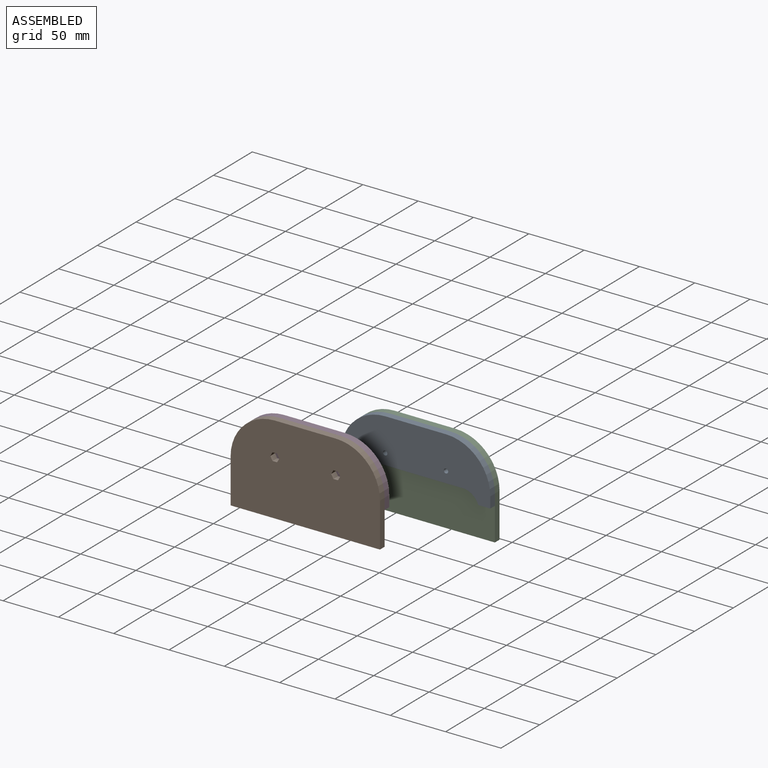
[diagram: assembled view]
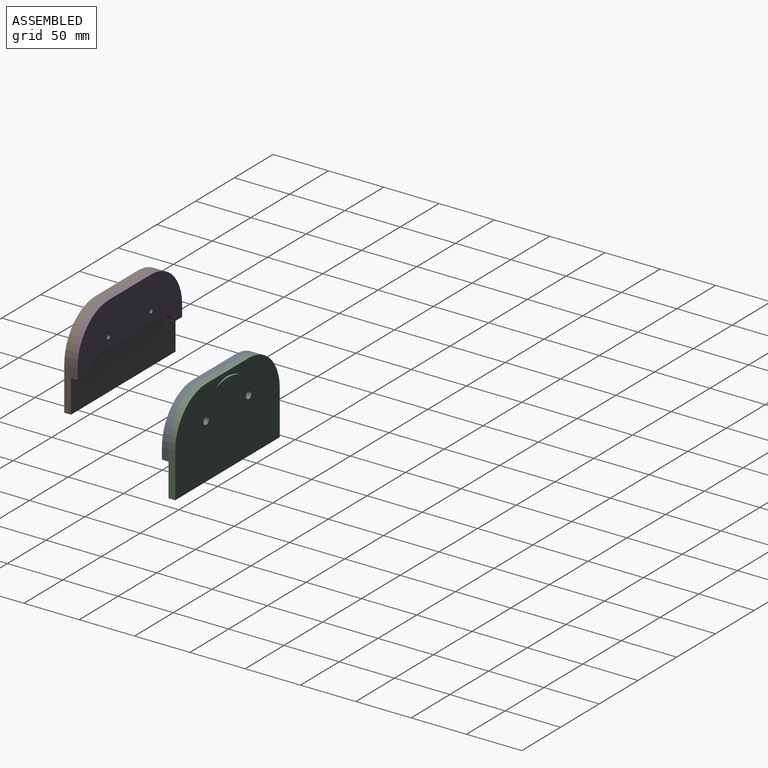
[diagram: assembled view, second angle]
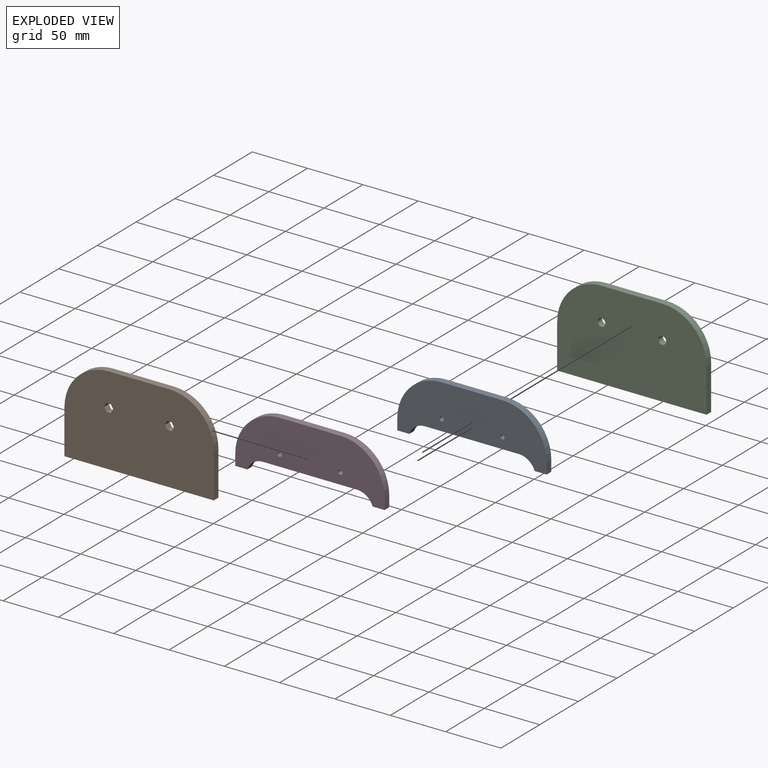
[diagram: exploded view]
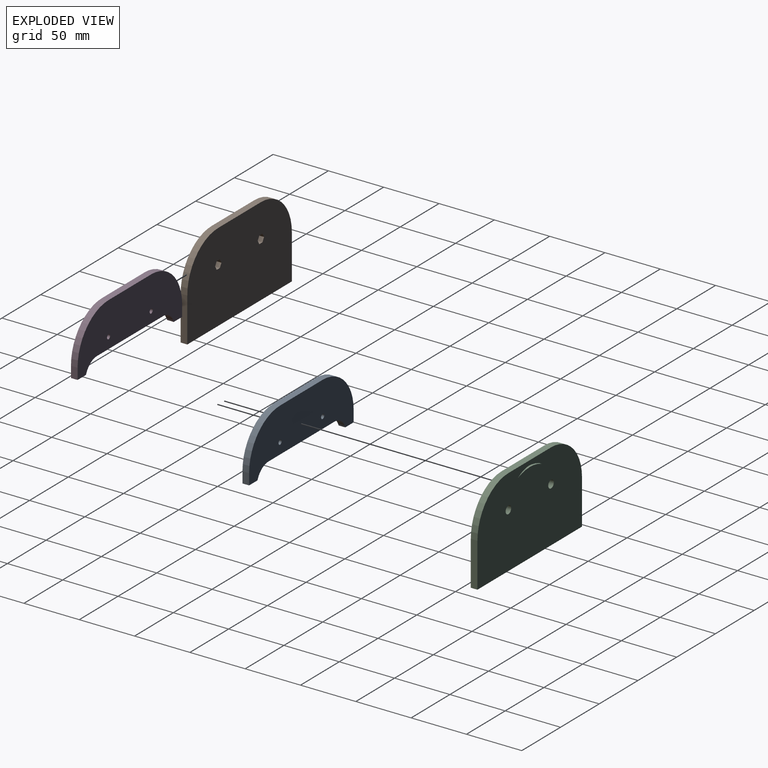
[diagram: exploded view, second angle]
ASSEMBLY  parts=4 mates=2
PART A: 14 faces, bbox 135x6x50 mm
  f0: cylinder r=15mm len=14.14mm, axis (0,1,0), area 110.8mm2, adj f2,f8,f9,f13
  f1: cylinder r=15mm len=14.14mm, axis (0,1,0), area 110.8mm2, adj f2,f8,f9,f12
  f2: plane 135x50mm, normal (0,-1,0), area 4981.9mm2, adj f0,f1,f3,f4,f5,f6,f7,f8
  f3: plane 10x6mm, normal (1,0,0), area 60mm2, adj f2,f4,f9,f12
  f4: cylinder r=40mm len=40mm, axis (0,1,0), area 377mm2, adj f2,f3,f5,f9
  f5: plane 55x6mm, normal (0,0,1), area 330mm2, adj f2,f4,f6,f9
  f6: cylinder r=40mm len=40mm, axis (0,1,0), area 377mm2, adj f2,f5,f7,f9
  f7: plane 10x6mm, normal (-1,0,0), area 60mm2, adj f2,f6,f9,f13
  f8: plane 85x6mm, normal (0,0,-1), area 510mm2, adj f0,f1,f2,f9
  f9: plane 135x50mm, normal (0,1,0), area 4981.9mm2, adj f0,f1,f3,f4,f5,f6,f7,f8
  f10: cylinder r=2mm len=6mm, axis (0,-1,0), area 75.4mm2, adj f2,f9
  f11: cylinder r=2mm len=6mm, axis (0,-1,0), area 75.4mm2, adj f2,f9
  f12: plane 10.86x6mm, normal (0,0,-1), area 65.1mm2, adj f1,f2,f3,f9
  f13: plane 10.86x6mm, normal (0,0,-1), area 65.1mm2, adj f0,f2,f7,f9
PART B: 20 faces, bbox 135x6x80 mm
  f0: plane 135x80mm, normal (0,-1,0), area 10026mm2, adj f2,f3,f4,f5,f6,f7,f8,f9
  f1: plane 135x80mm, normal (0,1,0), area 10026mm2, adj f2,f3,f4,f5,f6,f7,f8,f9
  f2: plane 40x6mm, normal (-1,0,0), area 240mm2, adj f0,f1,f3,f7
  f3: plane 135x6mm, normal (0,0,-1), area 810mm2, adj f0,f1,f2,f4
  f4: plane 40x6mm, normal (1,0,0), area 240mm2, adj f0,f1,f3,f5
  f5: cylinder r=40mm len=40mm, axis (0,1,0), area 377mm2, adj f0,f1,f4,f6
  f6: plane 55x6mm, normal (0,0,1), area 330mm2, adj f0,f1,f5,f7
  f7: cylinder r=40mm len=40mm, axis (0,1,0), area 377mm2, adj f0,f1,f2,f6
  f8: plane 6x3.55mm, normal (0.87,0,0.5), area 24.6mm2, adj f0,f1,f9,f13
  f9: plane 6x4.1mm, normal (0,0,1), area 24.6mm2, adj f0,f1,f8,f10
  f10: plane 6x3.55mm, normal (-0.87,0,0.5), area 24.6mm2, adj f0,f1,f9,f11
  f11: plane 6x3.55mm, normal (-0.87,0,-0.5), area 24.6mm2, adj f0,f1,f10,f12
  f12: plane 6x4.1mm, normal (0,0,-1), area 24.6mm2, adj f0,f1,f11,f13
  f13: plane 6x3.55mm, normal (0.87,0,-0.5), area 24.6mm2, adj f0,f1,f8,f12
  f14: plane 6x3.55mm, normal (0.87,0,0.5), area 24.6mm2, adj f0,f1,f15,f19
  f15: plane 6x4.1mm, normal (0,0,1), area 24.6mm2, adj f0,f1,f14,f16
  f16: plane 6x3.55mm, normal (-0.87,0,0.5), area 24.6mm2, adj f0,f1,f15,f17
  f17: plane 6x3.55mm, normal (-0.87,0,-0.5), area 24.6mm2, adj f0,f1,f16,f18
  f18: plane 6x4.1mm, normal (0,0,-1), area 24.6mm2, adj f0,f1,f17,f19
  f19: plane 6x3.55mm, normal (0.87,0,-0.5), area 24.6mm2, adj f0,f1,f14,f18
PART C: 13 faces, bbox 135x6x80 mm
  f0: plane 135x80mm, normal (0,1,0), area 10001.2mm2, adj f1,f2,f3,f4,f5,f6,f8,f9
  f1: plane 40x6mm, normal (-1,0,0), area 240mm2, adj f0,f2,f6,f7
  f2: plane 135x6mm, normal (0,0,-1), area 810mm2, adj f0,f1,f3,f7
  f3: plane 40x6mm, normal (1,0,0), area 240mm2, adj f0,f2,f4,f7
  f4: cylinder r=40mm len=40mm, axis (0,1,0), area 377mm2, adj f0,f3,f5,f7
  f5: plane 55x6mm, normal (0,0,1), area 330mm2, adj f0,f4,f6,f7
  f6: cylinder r=40mm len=40mm, axis (0,1,0), area 377mm2, adj f0,f1,f5,f7
  f7: plane 135x80mm, normal (0,-1,0), area 10034.1mm2, adj f1,f2,f3,f4,f5,f6,f8,f9
  f8: cylinder r=3.55mm len=7.1mm, axis (0,-1,0), area 133.8mm2, adj f0,f7
  f9: cylinder r=3.55mm len=7.1mm, axis (0,-1,0), area 133.8mm2, adj f0,f7
  f10: cylinder r=39.42mm len=30mm, axis (0,1,0), area 61.6mm2, adj f0,f11,f12
  f11: cylinder r=27mm len=30mm, axis (0,1,0), area 63.6mm2, adj f0,f10,f12
  f12: plane 30x4.55mm, normal (0,1,0), area 32.9mm2, adj f10,f11
PART D: same geometry as A
PLACE A t=(93.96,86.47,39.2)mm
PLACE B t=(68.51,-19.58,69.4)mm
PLACE C t=(93.96,92.47,39.2)mm
PLACE D t=(68.51,-13.58,69.4)mm
MATE fastened D.f2 <-> B.f1  axis (0,-1,0) through (1.01,-19.58,149.4)mm
MATE fastened A.f9 <-> C.f7  axis (0,1,0) through (26.46,86.47,119.2)mm
